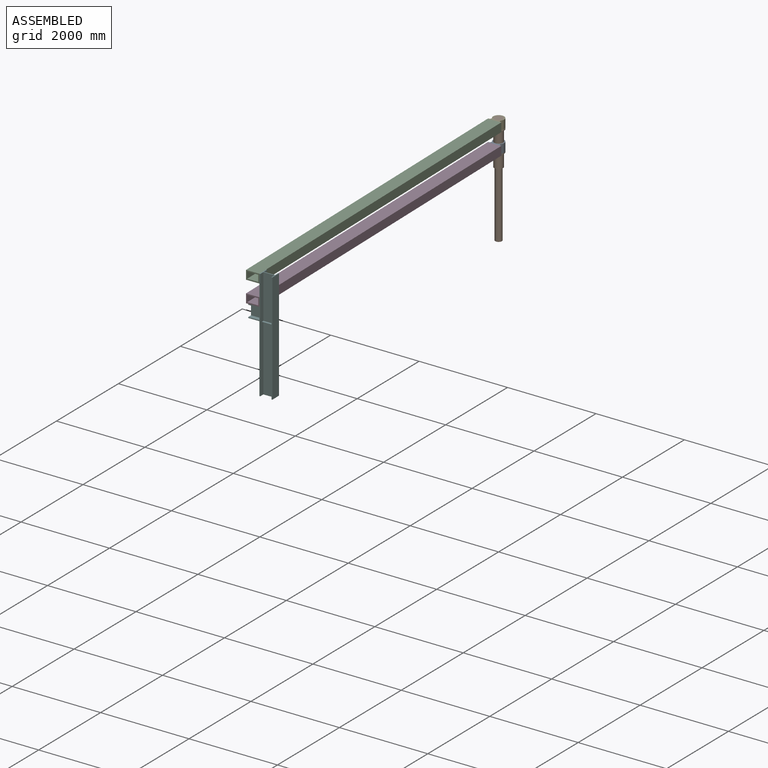
[diagram: assembled view]
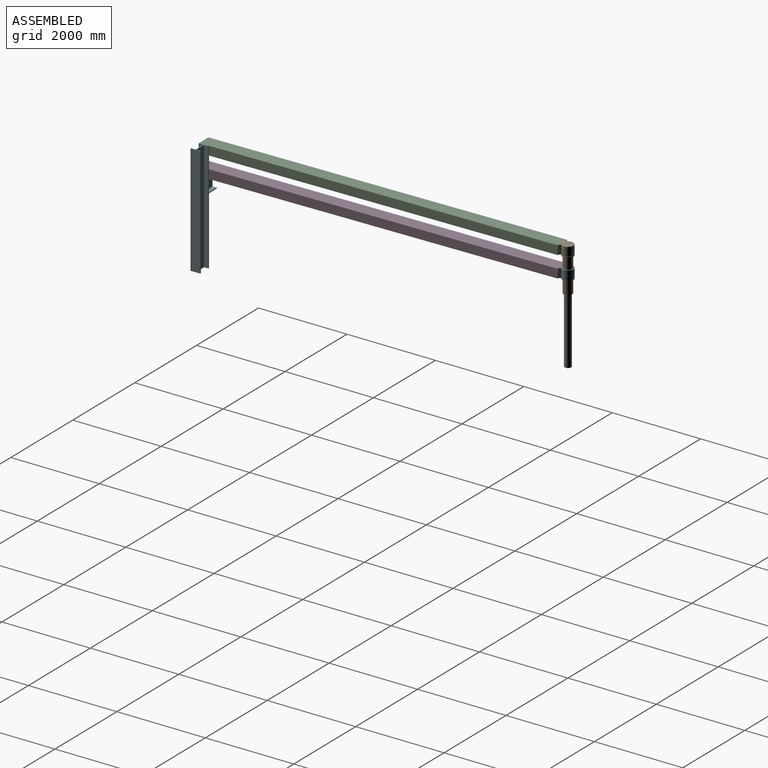
[diagram: assembled view, second angle]
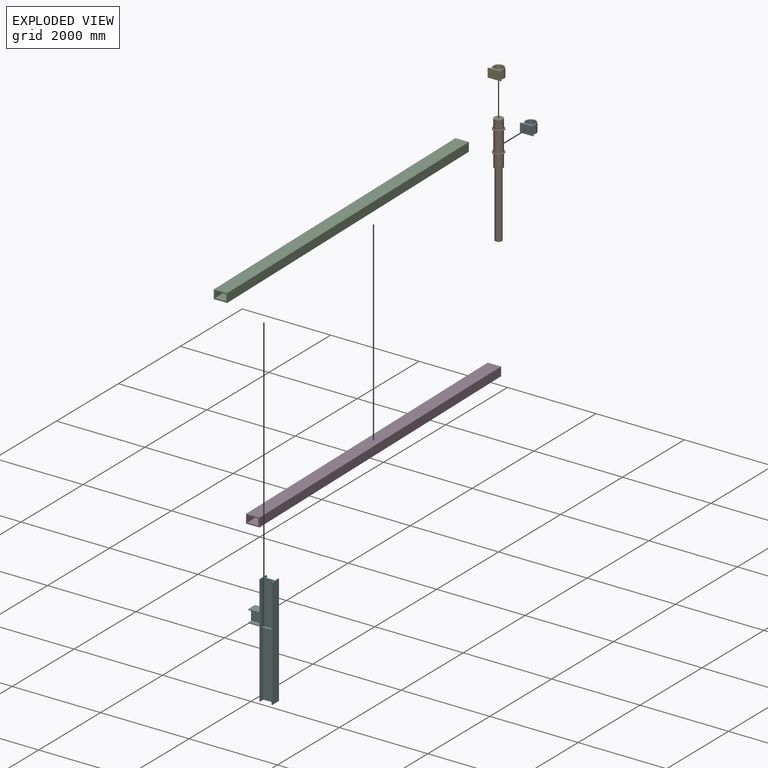
[diagram: exploded view]
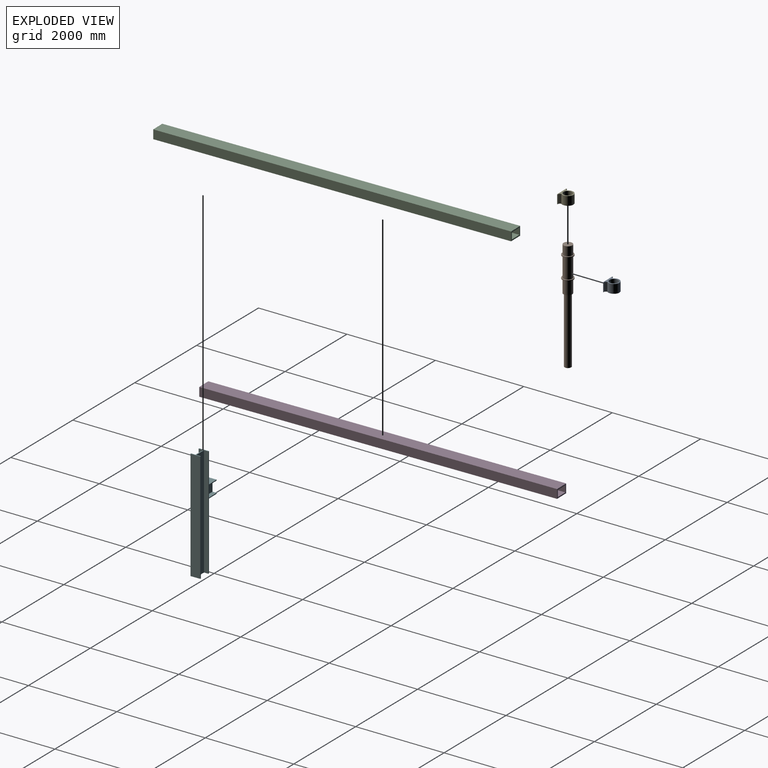
[diagram: exploded view, second angle]
ASSEMBLY  parts=6 mates=5
PART A: 11 faces, bbox 265x300x200 mm
  f0: plane 200x34.86mm, normal (-1,0,0), area 6971.8mm2, adj f1,f7,f9,f10
  f1: plane 200x42.09mm, normal (-0.46,0.89,0), area 9461mm2, adj f0,f2,f9,f10
  f2: cylinder r=125mm len=250mm, axis (0,0,-1), area 114801.1mm2, adj f1,f3,f9,f10
  f3: plane 200x42.09mm, normal (-0.46,-0.89,0), area 9461mm2, adj f2,f4,f9,f10
  f4: plane 200x34.86mm, normal (-1,0,0), area 6971.8mm2, adj f3,f5,f9,f10
  f5: plane 200x15mm, normal (0,-1,0), area 3000mm2, adj f4,f6,f9,f10
  f6: plane 300x200mm, normal (1,0,0), area 60000mm2, adj f5,f7,f9,f10
  f7: plane 200x15mm, normal (0,1,0), area 3000mm2, adj f0,f6,f9,f10
  f8: cylinder r=100mm len=200mm, axis (0,0,-1), area 125663.7mm2, adj f9,f10
  f9: plane 300x265mm, normal (0,0,1), area 25498.3mm2, adj f0,f1,f2,f3,f4,f5,f6,f7
  f10: plane 300x265mm, normal (0,0,-1), area 25498.3mm2, adj f0,f1,f2,f3,f4,f5,f6,f7
PART B: 13 faces, bbox 250x250x2500 mm
  f0: cylinder r=100mm len=455mm, axis (0,0,-1), area 285884.9mm2, adj f2,f8
  f1: cylinder r=125mm len=250mm, axis (0,0,-1), area 15708mm2, adj f2,f3
  f2: plane 250x250mm, normal (0,0,1), area 17671.5mm2, adj f0,f1
  f3: plane 250x250mm, normal (0,0,-1), area 17671.5mm2, adj f1,f5
  f4: plane 200x200mm, normal (0,0,-1), area 13744.5mm2, adj f5,f11
  f5: cylinder r=100mm len=300mm, axis (0,0,-1), area 188495.6mm2, adj f3,f4
  f6: cylinder r=125mm len=250mm, axis (0,0,-1), area 15708mm2, adj f7,f8
  f7: plane 250x250mm, normal (0,0,1), area 17671.5mm2, adj f6,f10
  f8: plane 250x250mm, normal (0,0,-1), area 17671.5mm2, adj f0,f6
  f9: plane 200x200mm, normal (0,0,1), area 31415.9mm2, adj f10
  f10: cylinder r=100mm len=205mm, axis (0,0,-1), area 128805.3mm2, adj f7,f9
  f11: cylinder r=75mm len=1500mm, axis (0,0,1), area 706858.3mm2, adj f4,f12
  f12: plane 150x150mm, normal (0,0,-1), area 17671.5mm2, adj f11
PART C: 10 faces, bbox 8000x300x200 mm
  f0: plane 8000x200mm, normal (0,-1,0), area 1600000mm2, adj f1,f7,f8,f9
  f1: plane 8000x300mm, normal (0,0,-1), area 2400000mm2, adj f0,f2,f8,f9
  f2: plane 8000x200mm, normal (0,1,0), area 1600000mm2, adj f1,f7,f8,f9
  f3: plane 8000x146.87mm, normal (0,-1,0), area 1174987.2mm2, adj f4,f6,f8,f9
  f4: plane 8000x247.31mm, normal (0,0,1), area 1978516.7mm2, adj f3,f5,f8,f9
  f5: plane 8000x146.87mm, normal (0,1,0), area 1174987.2mm2, adj f4,f6,f8,f9
  f6: plane 8000x247.31mm, normal (0,0,-1), area 1978516.7mm2, adj f3,f5,f8,f9
  f7: plane 8000x300mm, normal (0,0,1), area 2400000mm2, adj f0,f2,f8,f9
  f8: plane 300x200mm, normal (1,0,0), area 23676.1mm2, adj f0,f1,f2,f3,f4,f5,f6,f7
  f9: plane 300x200mm, normal (-1,0,0), area 23676.1mm2, adj f0,f1,f2,f3,f4,f5,f6,f7
PART D: same geometry as C
PART E: same geometry as A
PART F: 30 faces, bbox 220x540x2500 mm
  f0: plane 995x250mm, normal (1,0,0), area 248750mm2, adj f2,f3,f16,f28
  f1: plane 1500x250mm, normal (1,0,0), area 375000mm2, adj f2,f3,f17,f27
  f2: plane 2500x100mm, normal (0,1,0), area 249750mm2, adj f0,f1,f8,f16,f17,f27,f28,f29
  f3: plane 2500x100mm, normal (0,-1,0), area 249750mm2, adj f0,f1,f9,f16,f17,f27,f28,f29
  f4: plane 1530x220mm, normal (0,-1,0), area 336600mm2, adj f8,f15,f17,f18
  f5: plane 250x91.46mm, normal (0,-1,0), area 22865.1mm2, adj f15,f23,f24,f25
  f6: plane 250x91.46mm, normal (0,-1,0), area 22865.1mm2, adj f8,f19,f20,f21
  f7: plane 680x220mm, normal (0,-1,0), area 149600mm2, adj f8,f15,f16,f22
  f8: plane 2500x270mm, normal (1,0,0), area 60000mm2, adj f2,f4,f6,f7,f16,f17,f18,f19
  f9: plane 2500x20mm, normal (1,0,0), area 50000mm2, adj f3,f10,f16,f17
  f10: plane 2500x220mm, normal (0,1,0), area 550000mm2, adj f9,f11,f16,f17
  f11: plane 2500x20mm, normal (-1,0,0), area 50000mm2, adj f10,f12,f16,f17
  f12: plane 2500x100mm, normal (0,-1,0), area 250000mm2, adj f11,f13,f16,f17
  f13: plane 2500x250mm, normal (-1,0,0), area 625000mm2, adj f12,f14,f16,f17
  f14: plane 2500x100mm, normal (0,1,0), area 250000mm2, adj f13,f15,f16,f17
  f15: plane 2500x270mm, normal (-1,0,0), area 60000mm2, adj f4,f5,f7,f14,f16,f17,f18,f22
  f16: plane 290x220mm, normal (0,0,1), area 13800mm2, adj f0,f2,f3,f7,f8,f9,f10,f11
  f17: plane 290x220mm, normal (0,0,-1), area 13800mm2, adj f1,f2,f3,f4,f8,f9,f10,f11
  f18: plane 250x220mm, normal (0,0,-1), area 55000mm2, adj f4,f8,f15,f26
  f19: plane 250x91.46mm, normal (0,0,1), area 22865.1mm2, adj f6,f8,f20,f26
  f20: plane 250x250mm, normal (1,0,0), area 62500mm2, adj f6,f19,f21,f26
  f21: plane 250x91.46mm, normal (0,0,-1), area 22865.1mm2, adj f6,f8,f20,f26
  f22: plane 250x220mm, normal (0,0,1), area 55000mm2, adj f7,f8,f15,f26
  f23: plane 250x91.46mm, normal (0,0,-1), area 22865.1mm2, adj f5,f15,f24,f26
  f24: plane 250x250mm, normal (-1,0,0), area 62500mm2, adj f5,f23,f25,f26
  f25: plane 250x91.46mm, normal (0,0,1), area 22865.1mm2, adj f5,f15,f24,f26
  f26: plane 290x220mm, normal (0,-1,0), area 18069.8mm2, adj f8,f15,f18,f19,f20,f21,f22,f23
  f27: plane 250x50mm, normal (0,0,-1), area 12500mm2, adj f1,f2,f3,f29
  f28: plane 250x50mm, normal (0,0,1), area 12500mm2, adj f0,f2,f3,f29
  f29: plane 250x5mm, normal (1,0,0), area 1250mm2, adj f2,f3,f27,f28
PLACE A rot(axis=(0.71,-0.7,0),180deg) t=(0,0,1315)mm
PLACE B at identity
PLACE C rot(axis=(-0.7,-0.71,0),180deg) t=(139.61,-8278.82,1795)mm
PLACE D rot(axis=(-0.7,-0.71,0),180deg) t=(139.75,-8278.82,1315)mm
PLACE E rot(axis=(0,0,-1),89deg) t=(0,0,5)mm
PLACE F rot(axis=(0,0,-1),89deg) t=(285.5,-8026.32,-1500)mm
MATE fastened E.f6 <-> C.f8  axis (0.02,-1,0) through (2.36,-139.98,900)mm
MATE revolute B.f1 <-> A.f8  axis (0,0,1) through (0,0,320)mm
MATE revolute B.f0 <-> E.f8  axis (0,0,-1) through (0,0,1000)mm
MATE fastened F.f22 <-> D.f7  axis (0,0,1) through (287.36,-8136.31,320)mm
MATE fastened A.f6 <-> D.f8  axis (0.02,-1,0) through (2.36,-139.98,420)mm
